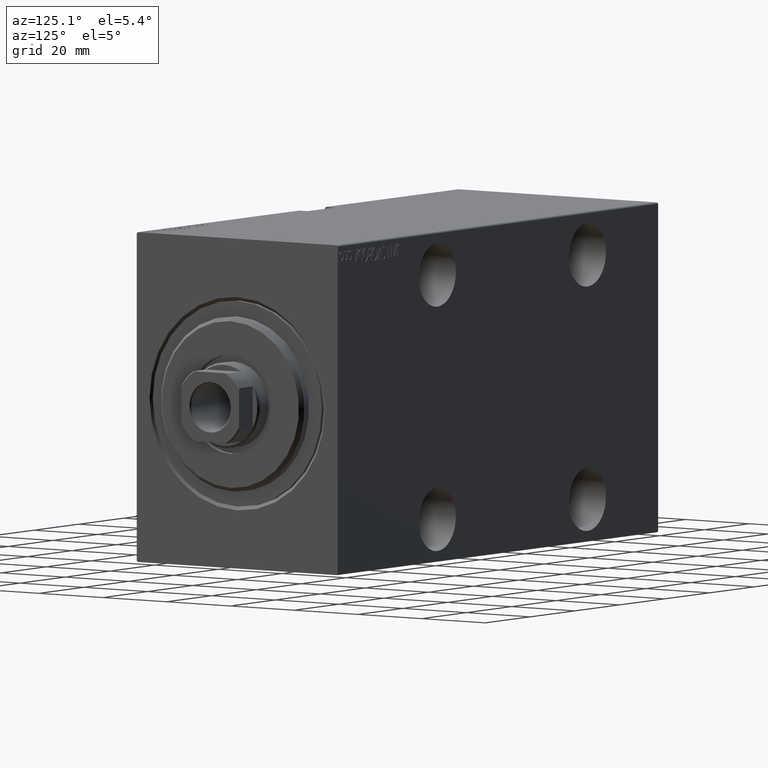
[diagram: clean part render]
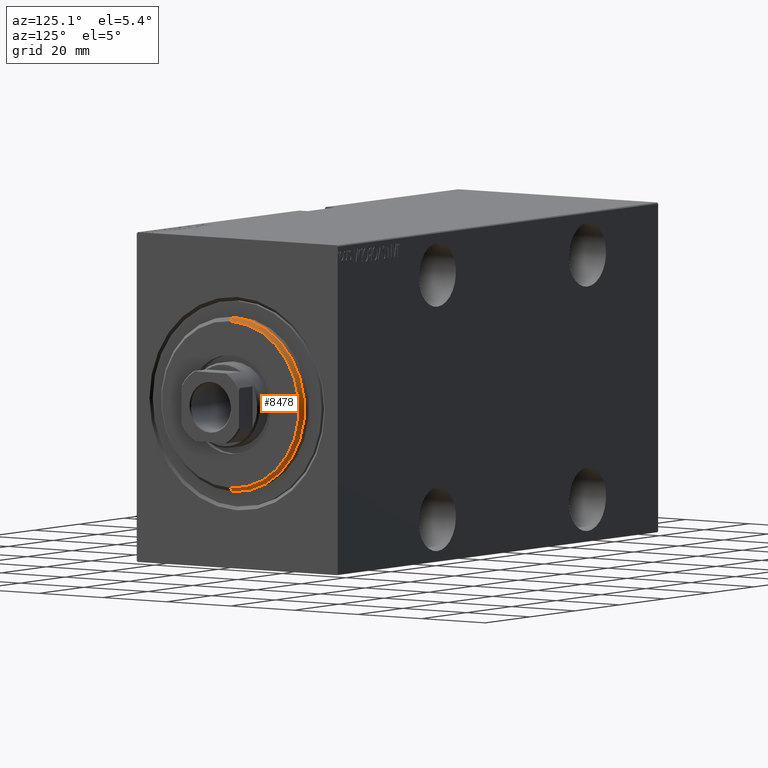
[diagram: same view with one face highlighted and labeled with its STEP entity id]
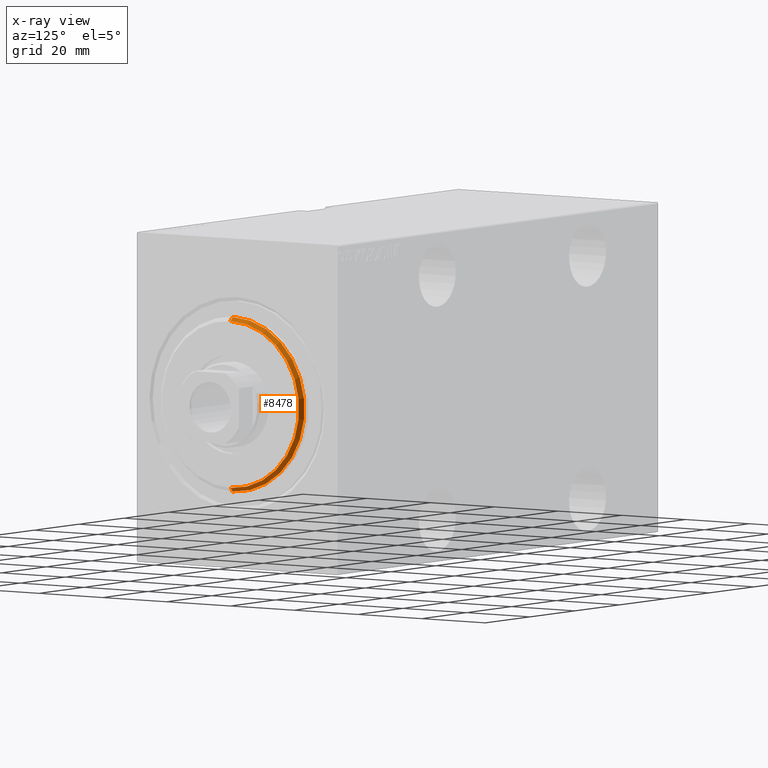
[diagram: x-ray of the same camera — body ghosted, the highlighted face saturated]
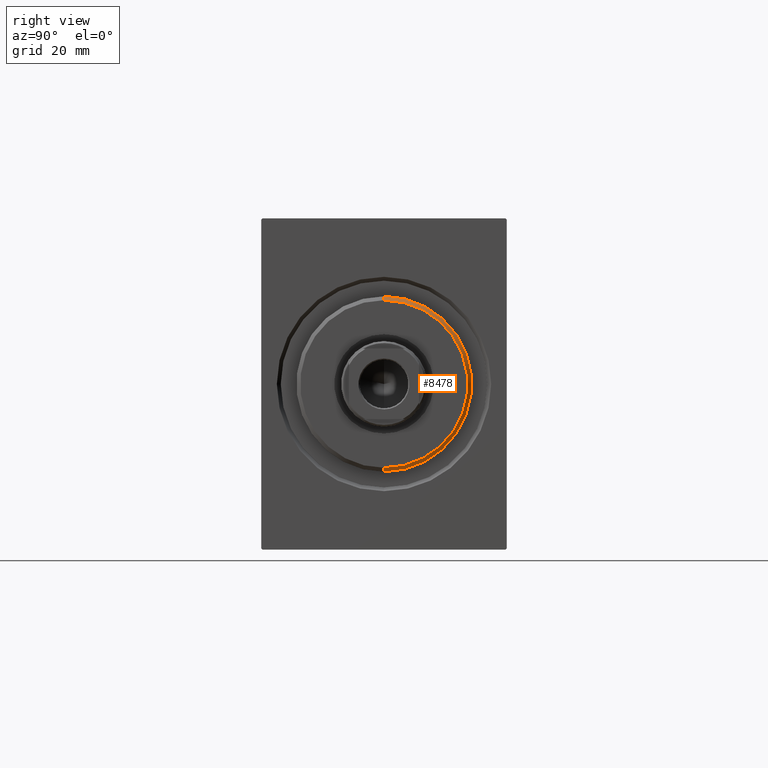
[diagram: same view with one face highlighted and labeled with its STEP entity id]
A machine part, auxiliary view. The second image highlights one B-rep face of the part: STEP entity #8478.
The next image is the same camera in x-ray: the body ghosted, the highlighted face saturated — about 0% of this face is hidden behind the body in this view.
A second angle (right view) of the same face is appended — the face is thin or edge-on in the first view.
In plain terms, the highlighted conical surface has half-angle 45 deg.
Its self-contained STEP definition (entity closure, byte-faithful):
#1063 = CARTESIAN_POINT ( 'NONE',  ( 3.000000000000000000, 0.000000000000000000, 0.000000000000000000 ) ) ;
#3054 = VERTEX_POINT ( 'NONE', #4135 ) ;
#4135 = CARTESIAN_POINT ( 'NONE',  ( 2.000000000000006217, 2.755455298081545172E-15, -22.50000000000000355 ) ) ;
#4438 = CARTESIAN_POINT ( 'NONE',  ( 3.000000000000000000, 2.632990618166810813E-15, -21.50000000000001066 ) ) ;
#5258 = DIRECTION ( 'NONE',  ( 0.000000000000000000, 0.000000000000000000, -1.000000000000000000 ) ) ;
#7893 = AXIS2_PLACEMENT_3D ( 'NONE', #21730, #34960, #5258 ) ;
#8342 = LINE ( 'NONE', #4438, #22479 ) ;
#8478 = ADVANCED_FACE ( 'NONE', ( #35035 ), #12571, .T. ) ;
#9481 = VERTEX_POINT ( 'NONE', #17427 ) ;
#11936 = VERTEX_POINT ( 'NONE', #35529 ) ;
#11949 = AXIS2_PLACEMENT_3D ( 'NONE', #1063, #24899, #18189 ) ;
#12571 = CONICAL_SURFACE ( 'NONE', #41679, 21.50000000000001066, 0.7853981633974466137 ) ;
#14869 = DIRECTION ( 'NONE',  ( -1.000000000000000000, 0.000000000000000000, 0.000000000000000000 ) ) ;
#15068 = EDGE_CURVE ( 'NONE', #32927, #3054, #39732, .T. ) ;
#16611 = EDGE_CURVE ( 'NONE', #9481, #32927, #16931, .T. ) ;
#16931 = LINE ( 'NONE', #42552, #32903 ) ;
#17328 = ORIENTED_EDGE ( 'NONE', *, *, #16611, .F. ) ;
#17427 = CARTESIAN_POINT ( 'NONE',  ( 3.000000000000000000, 0.000000000000000000, 21.50000000000001066 ) ) ;
#18189 = DIRECTION ( 'NONE',  ( 0.000000000000000000, 0.000000000000000000, -1.000000000000000000 ) ) ;
#20400 = EDGE_LOOP ( 'NONE', ( #24595, #31862, #34701, #17328 ) ) ;
#21730 = CARTESIAN_POINT ( 'NONE',  ( 2.000000000000006217, 0.000000000000000000, 0.000000000000000000 ) ) ;
#21983 = EDGE_CURVE ( 'NONE', #11936, #9481, #26461, .T. ) ;
#22479 = VECTOR ( 'NONE', #41525, 1000.000000000000000 ) ;
#24595 = ORIENTED_EDGE ( 'NONE', *, *, #21983, .F. ) ;
#24899 = DIRECTION ( 'NONE',  ( 1.000000000000000000, -0.000000000000000000, 0.000000000000000000 ) ) ;
#26461 = CIRCLE ( 'NONE', #11949, 21.50000000000001066 ) ;
#26913 = CARTESIAN_POINT ( 'NONE',  ( 2.000000000000006217, 0.000000000000000000, 22.50000000000000355 ) ) ;
#28088 = DIRECTION ( 'NONE',  ( 0.000000000000000000, 0.000000000000000000, 1.000000000000000000 ) ) ;
#30156 = DIRECTION ( 'NONE',  ( -0.7071067811865487940, 0.000000000000000000, 0.7071067811865463515 ) ) ;
#31862 = ORIENTED_EDGE ( 'NONE', *, *, #34693, .T. ) ;
#32903 = VECTOR ( 'NONE', #30156, 1000.000000000000000 ) ;
#32927 = VERTEX_POINT ( 'NONE', #26913 ) ;
#34693 = EDGE_CURVE ( 'NONE', #11936, #3054, #8342, .T. ) ;
#34701 = ORIENTED_EDGE ( 'NONE', *, *, #15068, .F. ) ;
#34960 = DIRECTION ( 'NONE',  ( -1.000000000000000000, 0.000000000000000000, 0.000000000000000000 ) ) ;
#35035 = FACE_OUTER_BOUND ( 'NONE', #20400, .T. ) ;
#35529 = CARTESIAN_POINT ( 'NONE',  ( 3.000000000000000000, 2.694222958124177993E-15, -21.50000000000001066 ) ) ;
#39732 = CIRCLE ( 'NONE', #7893, 22.50000000000000355 ) ;
#41334 = CARTESIAN_POINT ( 'NONE',  ( 3.000000000000000000, 0.000000000000000000, 0.000000000000000000 ) ) ;
#41525 = DIRECTION ( 'NONE',  ( -0.7071067811865487940, 8.659560562354919300E-17, -0.7071067811865463515 ) ) ;
#41679 = AXIS2_PLACEMENT_3D ( 'NONE', #41334, #14869, #28088 ) ;
#42552 = CARTESIAN_POINT ( 'NONE',  ( 3.000000000000000000, 0.000000000000000000, 21.50000000000001066 ) ) ;